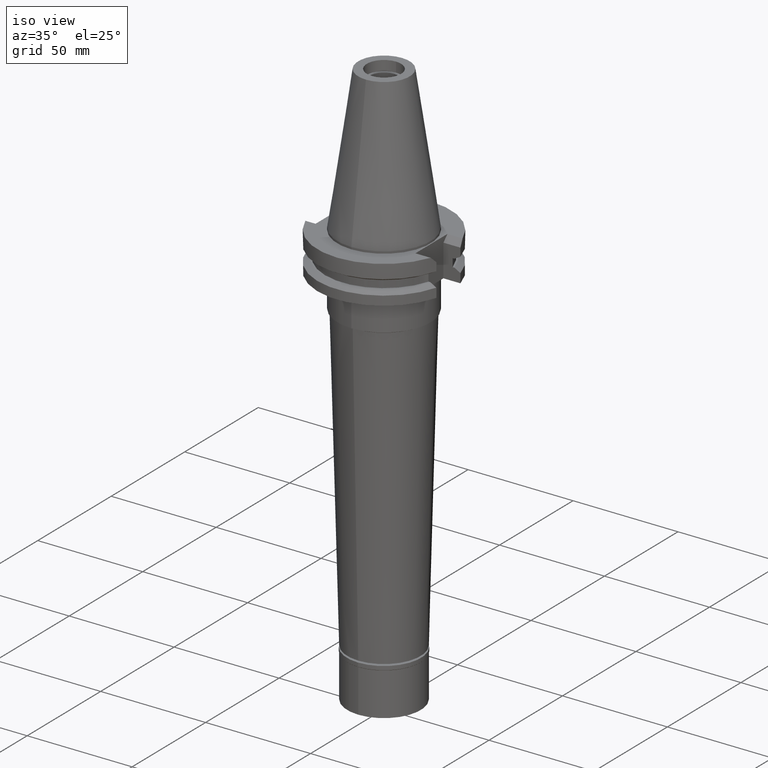
[diagram: clean part render]
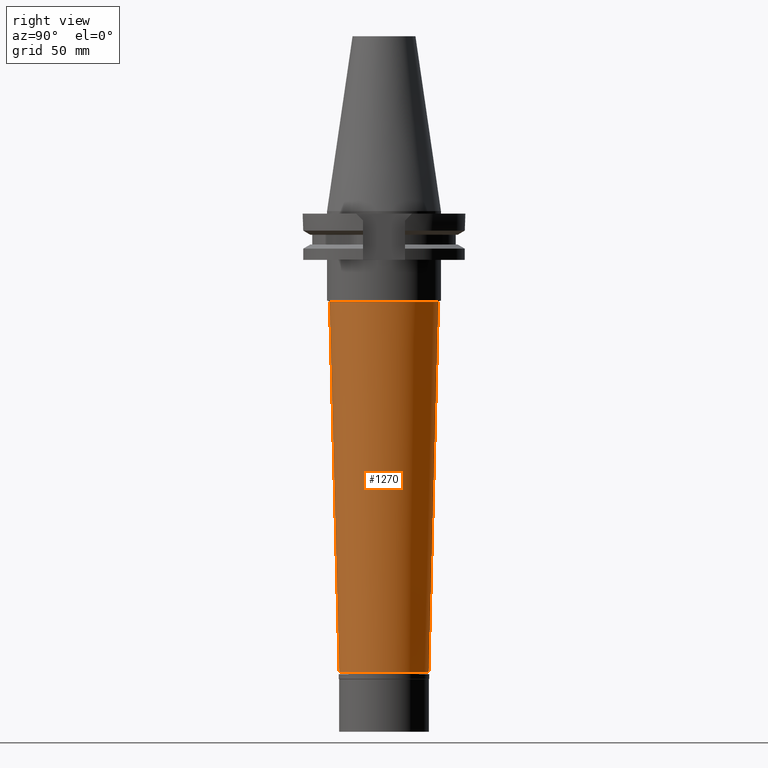
[diagram: tour spotlight — one face highlighted and labeled with its STEP entity id]
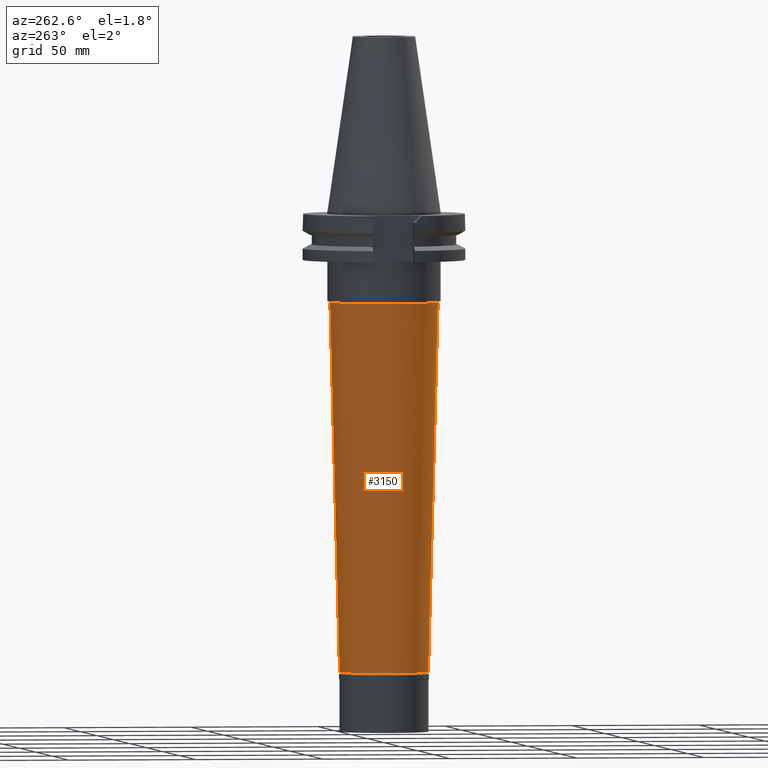
[diagram: tour spotlight — one face highlighted and labeled with its STEP entity id]
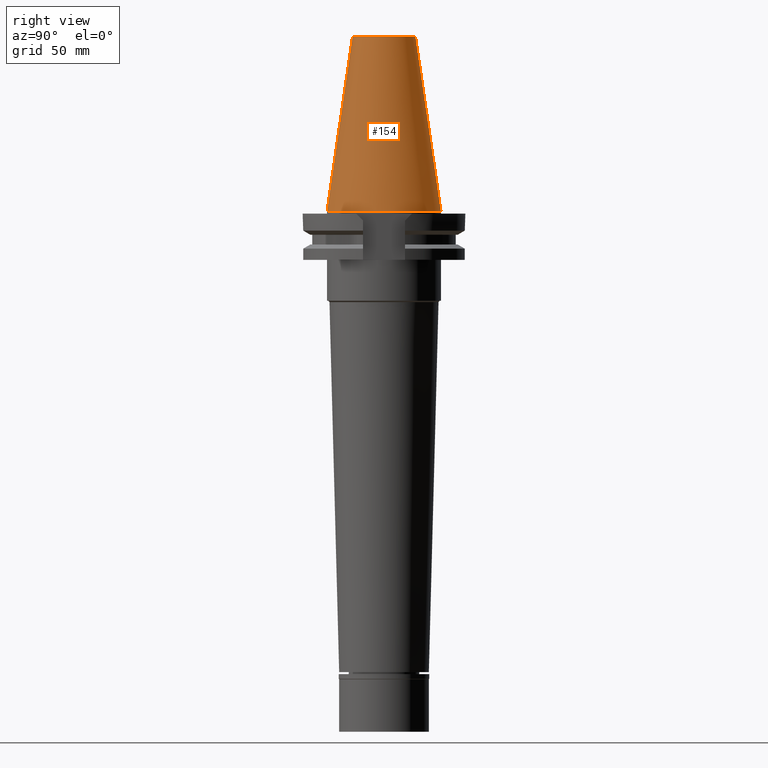
[diagram: tour spotlight — one face highlighted and labeled with its STEP entity id]
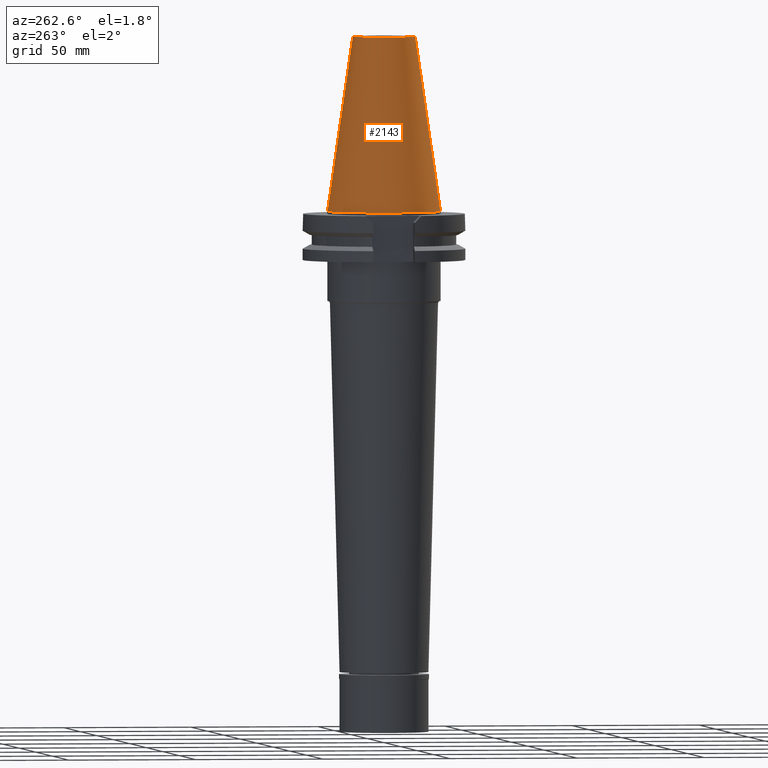
[diagram: tour spotlight — one face highlighted and labeled with its STEP entity id]
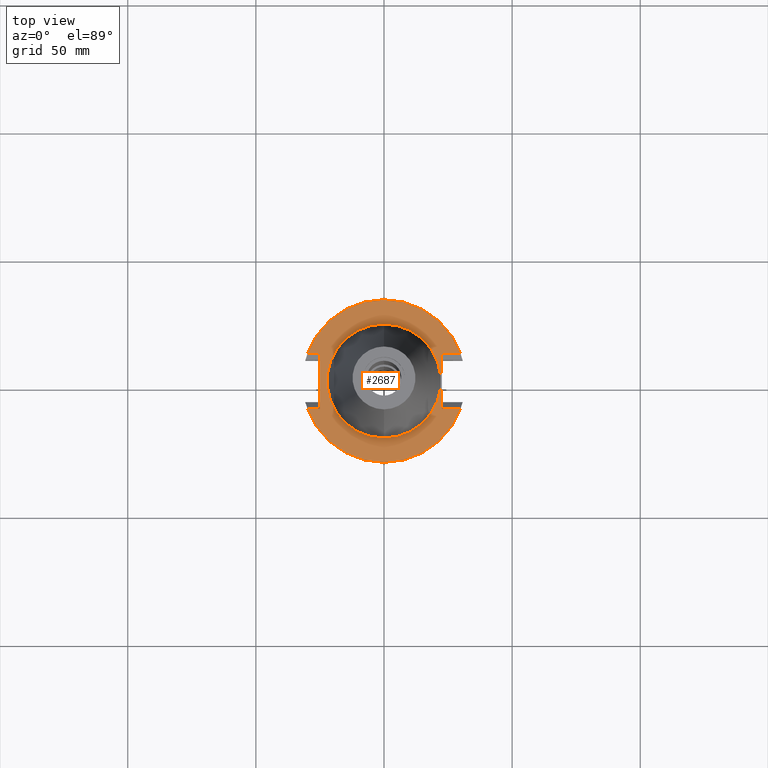
[diagram: tour spotlight — one face highlighted and labeled with its STEP entity id]
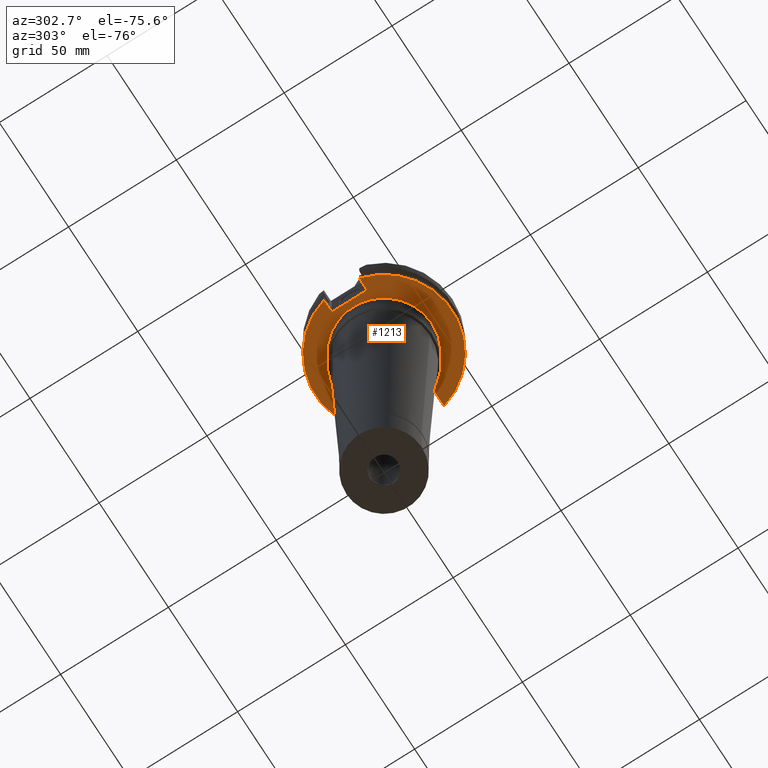
[diagram: tour spotlight — one face highlighted and labeled with its STEP entity id]
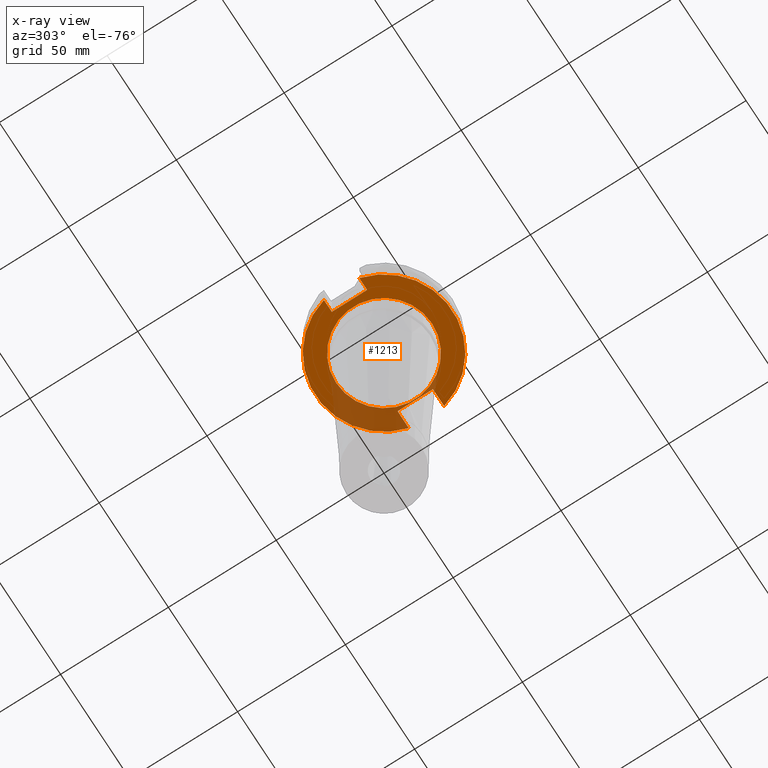
[diagram: x-ray of the same camera — body ghosted, this tour face saturated]
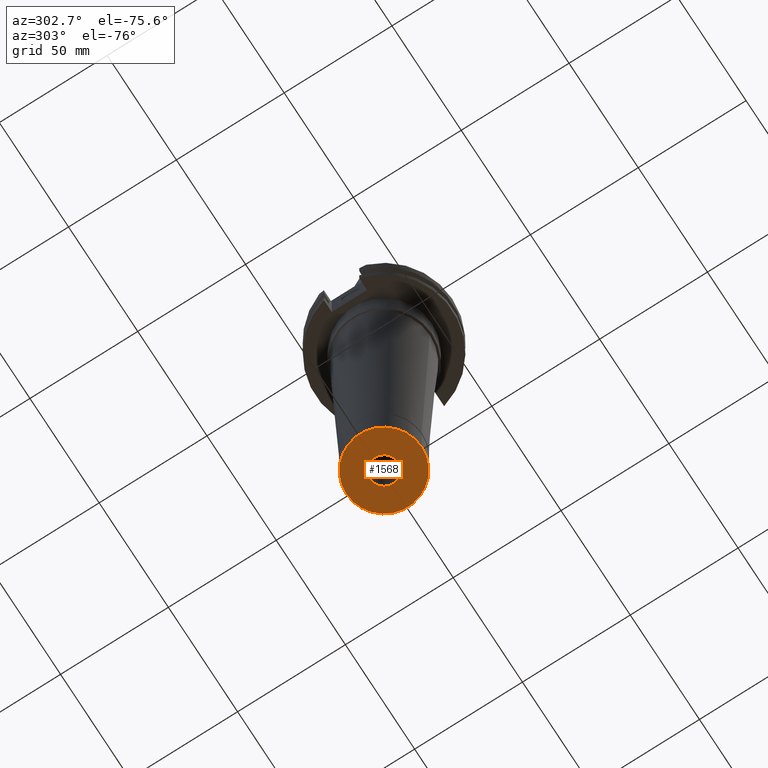
[diagram: tour spotlight — one face highlighted and labeled with its STEP entity id]
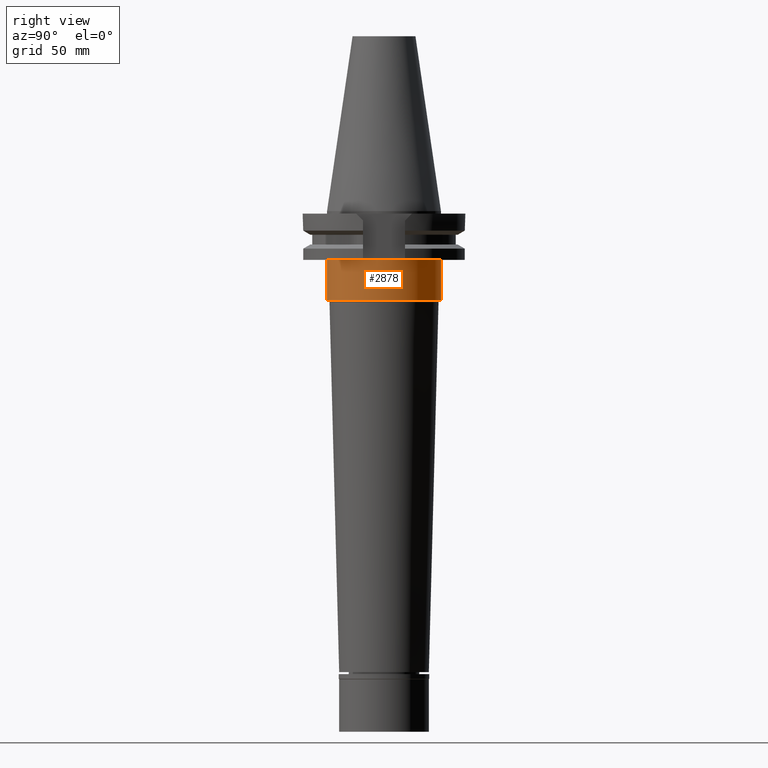
[diagram: tour spotlight — one face highlighted and labeled with its STEP entity id]
A machine part: a face-by-face anatomy tour. The part has 93 B-rep faces; the first image is the clean iso view, then the 8 largest visible faces are spotlighted one at a time (largest first), each with its STEP entity span.

Face 1 — right view, entity #1270. In plain terms, the highlighted conical surface has half-angle 1.5 deg.
Definition (entity closure, byte-faithful):
#185 = CARTESIAN_POINT ( 'NONE',  ( 0.0000000000000000000, 21.28124707458999865, -35.50000000000000000 ) ) ;
#299 = ORIENTED_EDGE ( 'NONE', *, *, #1083, .T. ) ;
#312 = CIRCLE ( 'NONE', #2158, 17.50000000000000000 ) ;
#415 = VERTEX_POINT ( 'NONE', #2473 ) ;
#519 = CARTESIAN_POINT ( 'NONE',  ( 0.0000000000000000000, 0.0000000000000000000, -179.9000000000000057 ) ) ;
#550 = LINE ( 'NONE', #581, #2730 ) ;
#564 = DIRECTION ( 'NONE',  ( 0.0000000000000000000, 0.0000000000000000000, 1.000000000000000000 ) ) ;
#581 = CARTESIAN_POINT ( 'NONE',  ( 0.0000000000000000000, 21.28124707458999865, -35.50000000000000000 ) ) ;
#591 = EDGE_CURVE ( 'NONE', #415, #1584, #2321, .T. ) ;
#648 = DIRECTION ( 'NONE',  ( 0.0000000000000000000, 1.000000000000000000, 0.0000000000000000000 ) ) ;
#808 = DIRECTION ( 'NONE',  ( 0.0000000000000000000, 0.02617694830786890942, -0.9996573249755573709 ) ) ;
#820 = CARTESIAN_POINT ( 'NONE',  ( 0.0000000000000000000, -21.28124707458999865, -35.50000000000000000 ) ) ;
#842 = ORIENTED_EDGE ( 'NONE', *, *, #956, .F. ) ;
#948 = VERTEX_POINT ( 'NONE', #185 ) ;
#956 = EDGE_CURVE ( 'NONE', #415, #948, #2498, .T. ) ;
#958 = DIRECTION ( 'NONE',  ( 0.0000000000000000000, -1.000000000000000000, 0.0000000000000000000 ) ) ;
#1065 = AXIS2_PLACEMENT_3D ( 'NONE', #1915, #2408, #648 ) ;
#1083 = EDGE_CURVE ( 'NONE', #1584, #2977, #312, .T. ) ;
#1212 = DIRECTION ( 'NONE',  ( 0.0000000000000000000, 0.0000000000000000000, 1.000000000000000000 ) ) ;
#1270 = ADVANCED_FACE ( 'NONE', ( #1369 ), #3109, .T. ) ;
#1369 = FACE_OUTER_BOUND ( 'NONE', #2268, .T. ) ;
#1584 = VERTEX_POINT ( 'NONE', #2317 ) ;
#1656 = ORIENTED_EDGE ( 'NONE', *, *, #3006, .F. ) ;
#1915 = CARTESIAN_POINT ( 'NONE',  ( 0.0000000000000000000, 0.0000000000000000000, -107.7000000000000028 ) ) ;
#1935 = AXIS2_PLACEMENT_3D ( 'NONE', #3090, #1212, #958 ) ;
#2125 = CARTESIAN_POINT ( 'NONE',  ( 0.0000000000000000000, 17.50000000000000000, -179.9000000000000057 ) ) ;
#2158 = AXIS2_PLACEMENT_3D ( 'NONE', #519, #564, #2843 ) ;
#2268 = EDGE_LOOP ( 'NONE', ( #842, #2885, #299, #1656 ) ) ;
#2317 = CARTESIAN_POINT ( 'NONE',  ( 0.0000000000000000000, -17.50000000000000000, -179.9000000000000057 ) ) ;
#2321 = LINE ( 'NONE', #820, #3285 ) ;
#2408 = DIRECTION ( 'NONE',  ( 0.0000000000000000000, 0.0000000000000000000, 1.000000000000000000 ) ) ;
#2473 = CARTESIAN_POINT ( 'NONE',  ( 0.0000000000000000000, -21.28124707458999865, -35.50000000000000000 ) ) ;
#2498 = CIRCLE ( 'NONE', #1935, 21.28124707459999954 ) ;
#2730 = VECTOR ( 'NONE', #2870, 1000.000000000000227 ) ;
#2843 = DIRECTION ( 'NONE',  ( 0.0000000000000000000, -1.000000000000000000, 0.0000000000000000000 ) ) ;
#2870 = DIRECTION ( 'NONE',  ( 0.0000000000000000000, -0.02617694830786890942, -0.9996573249755573709 ) ) ;
#2885 = ORIENTED_EDGE ( 'NONE', *, *, #591, .T. ) ;
#2977 = VERTEX_POINT ( 'NONE', #2125 ) ;
#3006 = EDGE_CURVE ( 'NONE', #948, #2977, #550, .T. ) ;
#3090 = CARTESIAN_POINT ( 'NONE',  ( 0.0000000000000000000, 0.0000000000000000000, -35.50000000000000000 ) ) ;
#3109 = CONICAL_SURFACE ( 'NONE', #1065, 19.39062353730000154, 0.02617993877991150325 ) ;
#3285 = VECTOR ( 'NONE', #808, 1000.000000000000227 ) ;

Face 2 — auxiliary view, entity #3150. In plain terms, the highlighted conical surface has half-angle 1.5 deg.
Definition (entity closure, byte-faithful):
#185 = CARTESIAN_POINT ( 'NONE',  ( 0.0000000000000000000, 21.28124707458999865, -35.50000000000000000 ) ) ;
#381 = DIRECTION ( 'NONE',  ( 0.0000000000000000000, 1.000000000000000000, 0.0000000000000000000 ) ) ;
#415 = VERTEX_POINT ( 'NONE', #2473 ) ;
#469 = CARTESIAN_POINT ( 'NONE',  ( 0.0000000000000000000, 0.0000000000000000000, -179.9000000000000057 ) ) ;
#550 = LINE ( 'NONE', #581, #2730 ) ;
#581 = CARTESIAN_POINT ( 'NONE',  ( 0.0000000000000000000, 21.28124707458999865, -35.50000000000000000 ) ) ;
#586 = AXIS2_PLACEMENT_3D ( 'NONE', #954, #1742, #1945 ) ;
#591 = EDGE_CURVE ( 'NONE', #415, #1584, #2321, .T. ) ;
#593 = CONICAL_SURFACE ( 'NONE', #3065, 19.39062353730000154, 0.02617993877991150325 ) ;
#621 = DIRECTION ( 'NONE',  ( 0.0000000000000000000, 0.0000000000000000000, 1.000000000000000000 ) ) ;
#698 = ORIENTED_EDGE ( 'NONE', *, *, #591, .F. ) ;
#808 = DIRECTION ( 'NONE',  ( 0.0000000000000000000, 0.02617694830786890942, -0.9996573249755573709 ) ) ;
#820 = CARTESIAN_POINT ( 'NONE',  ( 0.0000000000000000000, -21.28124707458999865, -35.50000000000000000 ) ) ;
#884 = ORIENTED_EDGE ( 'NONE', *, *, #1445, .T. ) ;
#887 = ORIENTED_EDGE ( 'NONE', *, *, #3006, .T. ) ;
#912 = CARTESIAN_POINT ( 'NONE',  ( 0.0000000000000000000, 0.0000000000000000000, -107.7000000000000028 ) ) ;
#948 = VERTEX_POINT ( 'NONE', #185 ) ;
#954 = CARTESIAN_POINT ( 'NONE',  ( 0.0000000000000000000, 0.0000000000000000000, -35.50000000000000000 ) ) ;
#1162 = ORIENTED_EDGE ( 'NONE', *, *, #1412, .T. ) ;
#1412 = EDGE_CURVE ( 'NONE', #415, #948, #2047, .T. ) ;
#1416 = EDGE_LOOP ( 'NONE', ( #884, #698, #1162, #887 ) ) ;
#1445 = EDGE_CURVE ( 'NONE', #2977, #1584, #2887, .T. ) ;
#1584 = VERTEX_POINT ( 'NONE', #2317 ) ;
#1742 = DIRECTION ( 'NONE',  ( 0.0000000000000000000, 0.0000000000000000000, -1.000000000000000000 ) ) ;
#1945 = DIRECTION ( 'NONE',  ( 0.0000000000000000000, -1.000000000000000000, 0.0000000000000000000 ) ) ;
#2047 = CIRCLE ( 'NONE', #586, 21.28124707458999865 ) ;
#2125 = CARTESIAN_POINT ( 'NONE',  ( 0.0000000000000000000, 17.50000000000000000, -179.9000000000000057 ) ) ;
#2317 = CARTESIAN_POINT ( 'NONE',  ( 0.0000000000000000000, -17.50000000000000000, -179.9000000000000057 ) ) ;
#2321 = LINE ( 'NONE', #820, #3285 ) ;
#2473 = CARTESIAN_POINT ( 'NONE',  ( 0.0000000000000000000, -21.28124707458999865, -35.50000000000000000 ) ) ;
#2727 = FACE_OUTER_BOUND ( 'NONE', #1416, .T. ) ;
#2730 = VECTOR ( 'NONE', #2870, 1000.000000000000227 ) ;
#2815 = DIRECTION ( 'NONE',  ( 0.0000000000000000000, 1.000000000000000000, 0.0000000000000000000 ) ) ;
#2828 = AXIS2_PLACEMENT_3D ( 'NONE', #469, #3088, #2815 ) ;
#2870 = DIRECTION ( 'NONE',  ( 0.0000000000000000000, -0.02617694830786890942, -0.9996573249755573709 ) ) ;
#2887 = CIRCLE ( 'NONE', #2828, 17.50000000000000000 ) ;
#2977 = VERTEX_POINT ( 'NONE', #2125 ) ;
#3006 = EDGE_CURVE ( 'NONE', #948, #2977, #550, .T. ) ;
#3065 = AXIS2_PLACEMENT_3D ( 'NONE', #912, #621, #381 ) ;
#3088 = DIRECTION ( 'NONE',  ( 0.0000000000000000000, 0.0000000000000000000, 1.000000000000000000 ) ) ;
#3150 = ADVANCED_FACE ( 'NONE', ( #2727 ), #593, .T. ) ;
#3285 = VECTOR ( 'NONE', #808, 1000.000000000000227 ) ;

Face 3 — right view, entity #154. In plain terms, the highlighted conical surface has half-angle 8.297 deg.
Definition (entity closure, byte-faithful):
#30 = DIRECTION ( 'NONE',  ( 0.0000000000000000000, 0.0000000000000000000, -1.000000000000000000 ) ) ;
#35 = DIRECTION ( 'NONE',  ( 0.0000000000000000000, -1.000000000000000000, 0.0000000000000000000 ) ) ;
#67 = CARTESIAN_POINT ( 'NONE',  ( 0.0000000000000000000, 1.642557519355999895E-14, 68.25000000000000000 ) ) ;
#154 = ADVANCED_FACE ( 'NONE', ( #2938 ), #1240, .T. ) ;
#179 = ORIENTED_EDGE ( 'NONE', *, *, #188, .T. ) ;
#188 = EDGE_CURVE ( 'NONE', #3032, #2166, #1678, .T. ) ;
#227 = ORIENTED_EDGE ( 'NONE', *, *, #3253, .F. ) ;
#317 = DIRECTION ( 'NONE',  ( 0.0000000000000000000, 1.000000000000000000, 0.0000000000000000000 ) ) ;
#346 = DIRECTION ( 'NONE',  ( 0.0000000000000000000, 0.1443069799456937474, -0.9895329683941577192 ) ) ;
#437 = CARTESIAN_POINT ( 'NONE',  ( 0.0000000000000000000, -22.22500000000000142, -2.415845301584000349E-13 ) ) ;
#625 = DIRECTION ( 'NONE',  ( 0.0000000000000000000, 0.0000000000000000000, -1.000000000000000000 ) ) ;
#704 = AXIS2_PLACEMENT_3D ( 'NONE', #67, #625, #317 ) ;
#776 = EDGE_CURVE ( 'NONE', #2166, #1391, #1901, .T. ) ;
#806 = AXIS2_PLACEMENT_3D ( 'NONE', #2974, #1092, #35 ) ;
#935 = ORIENTED_EDGE ( 'NONE', *, *, #776, .T. ) ;
#1047 = DIRECTION ( 'NONE',  ( 0.0000000000000000000, 1.000000000000000000, 0.0000000000000000000 ) ) ;
#1092 = DIRECTION ( 'NONE',  ( 0.0000000000000000000, 0.0000000000000000000, -1.000000000000000000 ) ) ;
#1240 = CONICAL_SURFACE ( 'NONE', #806, 17.24843444035000317, 0.1448125860318199565 ) ;
#1309 = CARTESIAN_POINT ( 'NONE',  ( 0.0000000000000000000, 1.642557519355999895E-14, -3.126388037344000570E-13 ) ) ;
#1391 = VERTEX_POINT ( 'NONE', #437 ) ;
#1659 = CARTESIAN_POINT ( 'NONE',  ( 0.0000000000000000000, 22.22500000000000142, -2.415845301584000349E-13 ) ) ;
#1678 = CIRCLE ( 'NONE', #704, 12.27186888070000137 ) ;
#1693 = CARTESIAN_POINT ( 'NONE',  ( 0.0000000000000000000, 12.27186888070000137, 68.25000000000000000 ) ) ;
#1760 = EDGE_LOOP ( 'NONE', ( #179, #935, #1994, #227 ) ) ;
#1781 = VECTOR ( 'NONE', #346, 1000.000000000000114 ) ;
#1901 = LINE ( 'NONE', #2949, #2998 ) ;
#1994 = ORIENTED_EDGE ( 'NONE', *, *, #3075, .F. ) ;
#2106 = AXIS2_PLACEMENT_3D ( 'NONE', #1309, #30, #1047 ) ;
#2107 = CARTESIAN_POINT ( 'NONE',  ( 0.0000000000000000000, 12.27186888070000137, 68.25000000000000000 ) ) ;
#2166 = VERTEX_POINT ( 'NONE', #3217 ) ;
#2208 = VERTEX_POINT ( 'NONE', #1659 ) ;
#2485 = LINE ( 'NONE', #1693, #1781 ) ;
#2672 = CIRCLE ( 'NONE', #2106, 22.22500000000000142 ) ;
#2938 = FACE_OUTER_BOUND ( 'NONE', #1760, .T. ) ;
#2949 = CARTESIAN_POINT ( 'NONE',  ( 0.0000000000000000000, -12.27186888070000137, 68.25000000000000000 ) ) ;
#2969 = DIRECTION ( 'NONE',  ( 0.0000000000000000000, -0.1443069799456937474, -0.9895329683941577192 ) ) ;
#2974 = CARTESIAN_POINT ( 'NONE',  ( 0.0000000000000000000, 1.642557519355999895E-14, 34.12500000000000000 ) ) ;
#2998 = VECTOR ( 'NONE', #2969, 1000.000000000000114 ) ;
#3032 = VERTEX_POINT ( 'NONE', #2107 ) ;
#3075 = EDGE_CURVE ( 'NONE', #2208, #1391, #2672, .T. ) ;
#3217 = CARTESIAN_POINT ( 'NONE',  ( 0.0000000000000000000, -12.27186888070000137, 68.25000000000000000 ) ) ;
#3253 = EDGE_CURVE ( 'NONE', #3032, #2208, #2485, .T. ) ;

Face 4 — auxiliary view, entity #2143. In plain terms, the highlighted conical surface has half-angle 8.297 deg.
Definition (entity closure, byte-faithful):
#52 = DIRECTION ( 'NONE',  ( 0.0000000000000000000, -1.000000000000000000, 0.0000000000000000000 ) ) ;
#346 = DIRECTION ( 'NONE',  ( 0.0000000000000000000, 0.1443069799456937474, -0.9895329683941577192 ) ) ;
#406 = DIRECTION ( 'NONE',  ( 0.0000000000000000000, 0.0000000000000000000, -1.000000000000000000 ) ) ;
#437 = CARTESIAN_POINT ( 'NONE',  ( 0.0000000000000000000, -22.22500000000000142, -2.415845301584000349E-13 ) ) ;
#475 = AXIS2_PLACEMENT_3D ( 'NONE', #1948, #406, #1429 ) ;
#507 = EDGE_CURVE ( 'NONE', #1391, #2208, #1451, .T. ) ;
#610 = DIRECTION ( 'NONE',  ( 0.0000000000000000000, 0.0000000000000000000, -1.000000000000000000 ) ) ;
#736 = ORIENTED_EDGE ( 'NONE', *, *, #507, .F. ) ;
#739 = ORIENTED_EDGE ( 'NONE', *, *, #3253, .T. ) ;
#776 = EDGE_CURVE ( 'NONE', #2166, #1391, #1901, .T. ) ;
#899 = CONICAL_SURFACE ( 'NONE', #1060, 17.24843444035000317, 0.1448125860318199565 ) ;
#981 = EDGE_CURVE ( 'NONE', #2166, #3032, #1881, .T. ) ;
#1060 = AXIS2_PLACEMENT_3D ( 'NONE', #3196, #610, #52 ) ;
#1252 = DIRECTION ( 'NONE',  ( 0.0000000000000000000, 0.0000000000000000000, -1.000000000000000000 ) ) ;
#1391 = VERTEX_POINT ( 'NONE', #437 ) ;
#1429 = DIRECTION ( 'NONE',  ( 0.0000000000000000000, -1.000000000000000000, 0.0000000000000000000 ) ) ;
#1451 = CIRCLE ( 'NONE', #2784, 22.22500000000000142 ) ;
#1535 = ORIENTED_EDGE ( 'NONE', *, *, #981, .T. ) ;
#1598 = ORIENTED_EDGE ( 'NONE', *, *, #776, .F. ) ;
#1659 = CARTESIAN_POINT ( 'NONE',  ( 0.0000000000000000000, 22.22500000000000142, -2.415845301584000349E-13 ) ) ;
#1693 = CARTESIAN_POINT ( 'NONE',  ( 0.0000000000000000000, 12.27186888070000137, 68.25000000000000000 ) ) ;
#1781 = VECTOR ( 'NONE', #346, 1000.000000000000114 ) ;
#1881 = CIRCLE ( 'NONE', #475, 12.27186888070000137 ) ;
#1901 = LINE ( 'NONE', #2949, #2998 ) ;
#1948 = CARTESIAN_POINT ( 'NONE',  ( 0.0000000000000000000, 1.642557519355999895E-14, 68.25000000000000000 ) ) ;
#2036 = DIRECTION ( 'NONE',  ( 0.0000000000000000000, -1.000000000000000000, 0.0000000000000000000 ) ) ;
#2107 = CARTESIAN_POINT ( 'NONE',  ( 0.0000000000000000000, 12.27186888070000137, 68.25000000000000000 ) ) ;
#2138 = FACE_OUTER_BOUND ( 'NONE', #2698, .T. ) ;
#2143 = ADVANCED_FACE ( 'NONE', ( #2138 ), #899, .T. ) ;
#2166 = VERTEX_POINT ( 'NONE', #3217 ) ;
#2187 = CARTESIAN_POINT ( 'NONE',  ( 0.0000000000000000000, 1.642557519355999895E-14, -3.126388037344000570E-13 ) ) ;
#2208 = VERTEX_POINT ( 'NONE', #1659 ) ;
#2485 = LINE ( 'NONE', #1693, #1781 ) ;
#2698 = EDGE_LOOP ( 'NONE', ( #736, #1598, #1535, #739 ) ) ;
#2784 = AXIS2_PLACEMENT_3D ( 'NONE', #2187, #1252, #2036 ) ;
#2949 = CARTESIAN_POINT ( 'NONE',  ( 0.0000000000000000000, -12.27186888070000137, 68.25000000000000000 ) ) ;
#2969 = DIRECTION ( 'NONE',  ( 0.0000000000000000000, -0.1443069799456937474, -0.9895329683941577192 ) ) ;
#2998 = VECTOR ( 'NONE', #2969, 1000.000000000000114 ) ;
#3032 = VERTEX_POINT ( 'NONE', #2107 ) ;
#3196 = CARTESIAN_POINT ( 'NONE',  ( 0.0000000000000000000, 1.642557519355999895E-14, 34.12500000000000000 ) ) ;
#3217 = CARTESIAN_POINT ( 'NONE',  ( 0.0000000000000000000, -12.27186888070000137, 68.25000000000000000 ) ) ;
#3253 = EDGE_CURVE ( 'NONE', #3032, #2208, #2485, .T. ) ;

Face 5 — top view, entity #2687. In plain terms, the highlighted planar face has unit normal (0, 0, -1).
Definition (entity closure, byte-faithful):
#26 = LINE ( 'NONE', #1009, #522 ) ;
#45 = ORIENTED_EDGE ( 'NONE', *, *, #1167, .T. ) ;
#54 = CARTESIAN_POINT ( 'NONE',  ( -24.98000000000000043, -10.89000000000000057, -1.000000000000000000 ) ) ;
#84 = CARTESIAN_POINT ( 'NONE',  ( -24.98000000000000043, 10.89000000000000057, -1.000000000000000000 ) ) ;
#142 = CARTESIAN_POINT ( 'NONE',  ( 0.0000000000000000000, 22.22500000000000142, -1.000000000000000000 ) ) ;
#143 = FACE_BOUND ( 'NONE', #1984, .T. ) ;
#153 = AXIS2_PLACEMENT_3D ( 'NONE', #853, #3219, #578 ) ;
#207 = ORIENTED_EDGE ( 'NONE', *, *, #2701, .F. ) ;
#213 = EDGE_LOOP ( 'NONE', ( #248, #1176, #207, #45, #1107, #2088, #3133, #536 ) ) ;
#236 = LINE ( 'NONE', #772, #2441 ) ;
#248 = ORIENTED_EDGE ( 'NONE', *, *, #2412, .T. ) ;
#256 = EDGE_CURVE ( 'NONE', #583, #3079, #367, .T. ) ;
#271 = LINE ( 'NONE', #1619, #2269 ) ;
#359 = CARTESIAN_POINT ( 'NONE',  ( -24.98000000000000043, -10.89000000000000057, -1.000000000000000000 ) ) ;
#367 = LINE ( 'NONE', #2957, #2849 ) ;
#410 = LINE ( 'NONE', #3041, #647 ) ;
#522 = VECTOR ( 'NONE', #2050, 1000.000000000000000 ) ;
#536 = ORIENTED_EDGE ( 'NONE', *, *, #2262, .F. ) ;
#578 = DIRECTION ( 'NONE',  ( 0.0000000000000000000, -1.000000000000000000, 0.0000000000000000000 ) ) ;
#583 = VERTEX_POINT ( 'NONE', #1560 ) ;
#617 = DIRECTION ( 'NONE',  ( 0.0000000000000000000, 1.000000000000000000, 0.0000000000000000000 ) ) ;
#636 = PLANE ( 'NONE',  #641 ) ;
#641 = AXIS2_PLACEMENT_3D ( 'NONE', #2431, #1712, #2203 ) ;
#647 = VECTOR ( 'NONE', #2222, 1000.000000000000000 ) ;
#685 = CIRCLE ( 'NONE', #2766, 31.75000000000000000 ) ;
#723 = DIRECTION ( 'NONE',  ( 0.0000000000000000000, -1.000000000000000000, 0.0000000000000000000 ) ) ;
#730 = EDGE_CURVE ( 'NONE', #3164, #1929, #1577, .T. ) ;
#772 = CARTESIAN_POINT ( 'NONE',  ( 22.57000000000000028, 10.89000000000000057, -1.000000000000000000 ) ) ;
#851 = DIRECTION ( 'NONE',  ( 0.0000000000000000000, 1.000000000000000000, 0.0000000000000000000 ) ) ;
#853 = CARTESIAN_POINT ( 'NONE',  ( 0.0000000000000000000, 2.222580859602999833E-14, -1.000000000000000000 ) ) ;
#871 = CARTESIAN_POINT ( 'NONE',  ( 0.0000000000000000000, 2.222580859602999833E-14, -1.000000000000000000 ) ) ;
#875 = EDGE_CURVE ( 'NONE', #1216, #2675, #1663, .T. ) ;
#903 = CIRCLE ( 'NONE', #153, 22.22500000000000142 ) ;
#1009 = CARTESIAN_POINT ( 'NONE',  ( -24.98000000000000043, 10.89000000000000057, -1.000000000000000000 ) ) ;
#1098 = CARTESIAN_POINT ( 'NONE',  ( 0.0000000000000000000, 2.222580859602999833E-14, -1.000000000000000000 ) ) ;
#1107 = ORIENTED_EDGE ( 'NONE', *, *, #875, .T. ) ;
#1167 = EDGE_CURVE ( 'NONE', #2458, #1216, #26, .T. ) ;
#1171 = CARTESIAN_POINT ( 'NONE',  ( 22.57000000000000028, 10.89000000000000057, -1.000000000000000000 ) ) ;
#1176 = ORIENTED_EDGE ( 'NONE', *, *, #2131, .F. ) ;
#1216 = VERTEX_POINT ( 'NONE', #54 ) ;
#1226 = EDGE_CURVE ( 'NONE', #1929, #3164, #903, .T. ) ;
#1241 = DIRECTION ( 'NONE',  ( 0.0000000000000000000, 0.0000000000000000000, -1.000000000000000000 ) ) ;
#1326 = ORIENTED_EDGE ( 'NONE', *, *, #730, .F. ) ;
#1356 = AXIS2_PLACEMENT_3D ( 'NONE', #2198, #2411, #617 ) ;
#1431 = CARTESIAN_POINT ( 'NONE',  ( 29.82399034335000110, -10.89000000000000057, -1.000000000001000089 ) ) ;
#1560 = CARTESIAN_POINT ( 'NONE',  ( 22.57000000000000028, -10.89000000000000057, -1.000000000000000000 ) ) ;
#1577 = CIRCLE ( 'NONE', #1356, 22.22500000000000142 ) ;
#1588 = DIRECTION ( 'NONE',  ( 1.000000000000000000, 5.779166972325999752E-14, 0.0000000000000000000 ) ) ;
#1619 = CARTESIAN_POINT ( 'NONE',  ( 22.57000000000000028, 10.89000000000000057, -1.000000000000000000 ) ) ;
#1663 = LINE ( 'NONE', #359, #3107 ) ;
#1712 = DIRECTION ( 'NONE',  ( 0.0000000000000000000, 0.0000000000000000000, -1.000000000000000000 ) ) ;
#1803 = CARTESIAN_POINT ( 'NONE',  ( -29.82399034335000110, 10.89000000000000057, -1.000000000000000000 ) ) ;
#1877 = DIRECTION ( 'NONE',  ( 0.0000000000000000000, 0.0000000000000000000, -1.000000000000000000 ) ) ;
#1911 = VERTEX_POINT ( 'NONE', #3063 ) ;
#1929 = VERTEX_POINT ( 'NONE', #3043 ) ;
#1984 = EDGE_LOOP ( 'NONE', ( #1326, #2664 ) ) ;
#2050 = DIRECTION ( 'NONE',  ( 0.0000000000000000000, -1.000000000000000000, 0.0000000000000000000 ) ) ;
#2088 = ORIENTED_EDGE ( 'NONE', *, *, #2243, .F. ) ;
#2131 = EDGE_CURVE ( 'NONE', #2404, #1911, #2546, .T. ) ;
#2198 = CARTESIAN_POINT ( 'NONE',  ( 0.0000000000000000000, 2.222580859602999833E-14, -1.000000000000000000 ) ) ;
#2203 = DIRECTION ( 'NONE',  ( 0.0000000000000000000, -1.000000000000000000, 0.0000000000000000000 ) ) ;
#2222 = DIRECTION ( 'NONE',  ( -1.000000000000000000, -8.617768155387999131E-14, 0.0000000000000000000 ) ) ;
#2243 = EDGE_CURVE ( 'NONE', #3079, #2675, #685, .T. ) ;
#2262 = EDGE_CURVE ( 'NONE', #2747, #583, #236, .T. ) ;
#2269 = VECTOR ( 'NONE', #2677, 1000.000000000000000 ) ;
#2404 = VERTEX_POINT ( 'NONE', #1803 ) ;
#2411 = DIRECTION ( 'NONE',  ( 0.0000000000000000000, 0.0000000000000000000, 1.000000000000000000 ) ) ;
#2412 = EDGE_CURVE ( 'NONE', #2747, #1911, #271, .T. ) ;
#2431 = CARTESIAN_POINT ( 'NONE',  ( 0.0000000000000000000, 1.212400331155999925E-14, -1.000000000000000000 ) ) ;
#2441 = VECTOR ( 'NONE', #723, 1000.000000000000000 ) ;
#2451 = CARTESIAN_POINT ( 'NONE',  ( -29.82399034335000110, -10.89000000000000057, -1.000000000001000089 ) ) ;
#2458 = VERTEX_POINT ( 'NONE', #84 ) ;
#2494 = AXIS2_PLACEMENT_3D ( 'NONE', #871, #1877, #851 ) ;
#2546 = CIRCLE ( 'NONE', #2494, 31.75000000000000000 ) ;
#2664 = ORIENTED_EDGE ( 'NONE', *, *, #1226, .F. ) ;
#2675 = VERTEX_POINT ( 'NONE', #2451 ) ;
#2677 = DIRECTION ( 'NONE',  ( 1.000000000000000000, -5.656726994099000295E-14, 0.0000000000000000000 ) ) ;
#2687 = ADVANCED_FACE ( 'NONE', ( #3009, #143 ), #636, .F. ) ;
#2701 = EDGE_CURVE ( 'NONE', #2458, #2404, #410, .T. ) ;
#2747 = VERTEX_POINT ( 'NONE', #1171 ) ;
#2766 = AXIS2_PLACEMENT_3D ( 'NONE', #1098, #1241, #3067 ) ;
#2801 = DIRECTION ( 'NONE',  ( -1.000000000000000000, 8.581096801535000112E-14, 0.0000000000000000000 ) ) ;
#2849 = VECTOR ( 'NONE', #1588, 1000.000000000000000 ) ;
#2957 = CARTESIAN_POINT ( 'NONE',  ( 22.57000000000000028, -10.89000000000000057, -1.000000000000000000 ) ) ;
#3009 = FACE_OUTER_BOUND ( 'NONE', #213, .T. ) ;
#3041 = CARTESIAN_POINT ( 'NONE',  ( -24.98000000000000043, 10.89000000000000057, -1.000000000000000000 ) ) ;
#3043 = CARTESIAN_POINT ( 'NONE',  ( 0.0000000000000000000, -22.22500000000000142, -1.000000000000000000 ) ) ;
#3063 = CARTESIAN_POINT ( 'NONE',  ( 29.82399034335000110, 10.89000000000000057, -1.000000000001000089 ) ) ;
#3067 = DIRECTION ( 'NONE',  ( 0.0000000000000000000, -1.000000000000000000, 0.0000000000000000000 ) ) ;
#3079 = VERTEX_POINT ( 'NONE', #1431 ) ;
#3107 = VECTOR ( 'NONE', #2801, 1000.000000000000000 ) ;
#3133 = ORIENTED_EDGE ( 'NONE', *, *, #256, .F. ) ;
#3164 = VERTEX_POINT ( 'NONE', #142 ) ;
#3219 = DIRECTION ( 'NONE',  ( 0.0000000000000000000, 0.0000000000000000000, 1.000000000000000000 ) ) ;

Face 6 — auxiliary view, entity #1213. An x-ray twin of the same camera follows (body ghosted, this face saturated) — the face is partly hidden behind the body. In plain terms, the highlighted planar face has unit normal (0, 0, -1).
Definition (entity closure, byte-faithful):
#71 = DIRECTION ( 'NONE',  ( 0.0000000000000000000, 0.0000000000000000000, -1.000000000000000000 ) ) ;
#110 = FACE_BOUND ( 'NONE', #2532, .T. ) ;
#139 = CARTESIAN_POINT ( 'NONE',  ( 22.57000000000000028, 8.189999999999999503, -19.05000000000000071 ) ) ;
#164 = LINE ( 'NONE', #399, #3204 ) ;
#201 = CARTESIAN_POINT ( 'NONE',  ( 0.0000000000000000000, 2.222580859602999833E-14, -19.05000000000000071 ) ) ;
#205 = DIRECTION ( 'NONE',  ( 0.0000000000000000000, -1.000000000000000000, 0.0000000000000000000 ) ) ;
#215 = ORIENTED_EDGE ( 'NONE', *, *, #821, .F. ) ;
#305 = DIRECTION ( 'NONE',  ( 0.0000000000000000000, -1.000000000000000000, 0.0000000000000000000 ) ) ;
#328 = DIRECTION ( 'NONE',  ( 0.0000000000000000000, -1.000000000000000000, 0.0000000000000000000 ) ) ;
#349 = CARTESIAN_POINT ( 'NONE',  ( -30.67550162588999640, 8.189999999999999503, -19.05000000000000071 ) ) ;
#366 = AXIS2_PLACEMENT_3D ( 'NONE', #1078, #1861, #2929 ) ;
#376 = PLANE ( 'NONE',  #366 ) ;
#378 = LINE ( 'NONE', #2179, #2043 ) ;
#387 = CARTESIAN_POINT ( 'NONE',  ( -24.98000000000000043, -8.189999999999999503, -19.05000000000000071 ) ) ;
#399 = CARTESIAN_POINT ( 'NONE',  ( -24.98000000000000043, -8.189999999999999503, -19.05000000000000071 ) ) ;
#422 = VECTOR ( 'NONE', #1688, 1000.000000000000000 ) ;
#444 = VERTEX_POINT ( 'NONE', #1483 ) ;
#504 = EDGE_CURVE ( 'NONE', #3125, #921, #2847, .T. ) ;
#562 = CARTESIAN_POINT ( 'NONE',  ( 0.0000000000000000000, 2.222580859602999833E-14, -19.05000000000000071 ) ) ;
#567 = CARTESIAN_POINT ( 'NONE',  ( 22.57000000000000028, 8.189999999999999503, -19.05000000000000071 ) ) ;
#579 = AXIS2_PLACEMENT_3D ( 'NONE', #1956, #2535, #919 ) ;
#584 = ORIENTED_EDGE ( 'NONE', *, *, #1450, .F. ) ;
#821 = EDGE_CURVE ( 'NONE', #2872, #1968, #378, .T. ) ;
#837 = CIRCLE ( 'NONE', #2378, 22.22500000000000142 ) ;
#847 = CARTESIAN_POINT ( 'NONE',  ( 22.57000000000000028, 8.189999999999999503, -19.05000000000000071 ) ) ;
#919 = DIRECTION ( 'NONE',  ( 0.0000000000000000000, 1.000000000000000000, 0.0000000000000000000 ) ) ;
#921 = VERTEX_POINT ( 'NONE', #2785 ) ;
#989 = ORIENTED_EDGE ( 'NONE', *, *, #1916, .F. ) ;
#991 = CARTESIAN_POINT ( 'NONE',  ( 0.0000000000000000000, 22.22500000000000142, -19.05000000000000071 ) ) ;
#995 = EDGE_CURVE ( 'NONE', #3179, #2762, #2723, .T. ) ;
#997 = CARTESIAN_POINT ( 'NONE',  ( -24.98000000000000043, 8.189999999999999503, -19.05000000000000071 ) ) ;
#1042 = VERTEX_POINT ( 'NONE', #991 ) ;
#1078 = CARTESIAN_POINT ( 'NONE',  ( 0.0000000000000000000, 0.0000000000000000000, -19.05000000000000071 ) ) ;
#1117 = CIRCLE ( 'NONE', #579, 22.22500000000000142 ) ;
#1196 = LINE ( 'NONE', #139, #422 ) ;
#1213 = ADVANCED_FACE ( 'NONE', ( #2440, #110 ), #376, .T. ) ;
#1335 = EDGE_LOOP ( 'NONE', ( #2137, #3195, #3156, #215, #3310, #2471, #584, #2908 ) ) ;
#1450 = EDGE_CURVE ( 'NONE', #1867, #3179, #1196, .T. ) ;
#1483 = CARTESIAN_POINT ( 'NONE',  ( 0.0000000000000000000, -22.22500000000000142, -19.05000000000000071 ) ) ;
#1512 = LINE ( 'NONE', #997, #2334 ) ;
#1673 = VECTOR ( 'NONE', #3171, 1000.000000000000000 ) ;
#1688 = DIRECTION ( 'NONE',  ( 1.000000000000000000, 0.0000000000000000000, 0.0000000000000000000 ) ) ;
#1836 = ORIENTED_EDGE ( 'NONE', *, *, #2236, .F. ) ;
#1852 = CARTESIAN_POINT ( 'NONE',  ( -30.67550162588999640, -8.189999999999999503, -19.05000000000000071 ) ) ;
#1861 = DIRECTION ( 'NONE',  ( 0.0000000000000000000, 0.0000000000000000000, -1.000000000000000000 ) ) ;
#1867 = VERTEX_POINT ( 'NONE', #847 ) ;
#1872 = EDGE_CURVE ( 'NONE', #1968, #2984, #164, .T. ) ;
#1916 = EDGE_CURVE ( 'NONE', #1042, #444, #1117, .T. ) ;
#1956 = CARTESIAN_POINT ( 'NONE',  ( 0.0000000000000000000, 2.222580859602999833E-14, -19.05000000000000071 ) ) ;
#1968 = VERTEX_POINT ( 'NONE', #387 ) ;
#1998 = DIRECTION ( 'NONE',  ( 0.0000000000000000000, 0.0000000000000000000, 1.000000000000000000 ) ) ;
#2021 = DIRECTION ( 'NONE',  ( 1.000000000000000000, 0.0000000000000000000, 0.0000000000000000000 ) ) ;
#2043 = VECTOR ( 'NONE', #328, 1000.000000000000000 ) ;
#2054 = CARTESIAN_POINT ( 'NONE',  ( -24.98000000000000043, 8.189999999999999503, -19.05000000000000071 ) ) ;
#2099 = AXIS2_PLACEMENT_3D ( 'NONE', #201, #1998, #3054 ) ;
#2137 = ORIENTED_EDGE ( 'NONE', *, *, #504, .T. ) ;
#2178 = VECTOR ( 'NONE', #2021, 1000.000000000000000 ) ;
#2179 = CARTESIAN_POINT ( 'NONE',  ( -24.98000000000000043, 8.189999999999999503, -19.05000000000000071 ) ) ;
#2229 = AXIS2_PLACEMENT_3D ( 'NONE', #2820, #2846, #205 ) ;
#2236 = EDGE_CURVE ( 'NONE', #444, #1042, #837, .T. ) ;
#2285 = CIRCLE ( 'NONE', #2229, 31.75000000000000000 ) ;
#2287 = CARTESIAN_POINT ( 'NONE',  ( 22.57000000000000028, -8.189999999999999503, -19.05000000000000071 ) ) ;
#2323 = DIRECTION ( 'NONE',  ( -1.000000000000000000, 0.0000000000000000000, 0.0000000000000000000 ) ) ;
#2334 = VECTOR ( 'NONE', #2323, 1000.000000000000000 ) ;
#2378 = AXIS2_PLACEMENT_3D ( 'NONE', #562, #71, #305 ) ;
#2429 = CARTESIAN_POINT ( 'NONE',  ( 22.57000000000000028, -8.189999999999999503, -19.05000000000000071 ) ) ;
#2440 = FACE_OUTER_BOUND ( 'NONE', #1335, .T. ) ;
#2471 = ORIENTED_EDGE ( 'NONE', *, *, #995, .F. ) ;
#2532 = EDGE_LOOP ( 'NONE', ( #989, #1836 ) ) ;
#2535 = DIRECTION ( 'NONE',  ( 0.0000000000000000000, 0.0000000000000000000, -1.000000000000000000 ) ) ;
#2723 = CIRCLE ( 'NONE', #2099, 31.75000000000000000 ) ;
#2735 = DIRECTION ( 'NONE',  ( -1.000000000000000000, 0.0000000000000000000, 0.0000000000000000000 ) ) ;
#2762 = VERTEX_POINT ( 'NONE', #349 ) ;
#2785 = CARTESIAN_POINT ( 'NONE',  ( 30.67550162588999640, -8.189999999999999503, -19.05000000000000071 ) ) ;
#2820 = CARTESIAN_POINT ( 'NONE',  ( 0.0000000000000000000, 2.222580859602999833E-14, -19.05000000000000071 ) ) ;
#2846 = DIRECTION ( 'NONE',  ( 0.0000000000000000000, 0.0000000000000000000, 1.000000000000000000 ) ) ;
#2847 = LINE ( 'NONE', #2287, #2178 ) ;
#2872 = VERTEX_POINT ( 'NONE', #2054 ) ;
#2903 = EDGE_CURVE ( 'NONE', #2872, #2762, #1512, .T. ) ;
#2908 = ORIENTED_EDGE ( 'NONE', *, *, #2985, .T. ) ;
#2916 = LINE ( 'NONE', #567, #1673 ) ;
#2929 = DIRECTION ( 'NONE',  ( 0.0000000000000000000, -1.000000000000000000, 0.0000000000000000000 ) ) ;
#2971 = CARTESIAN_POINT ( 'NONE',  ( 30.67550162588999640, 8.189999999999999503, -19.05000000000000071 ) ) ;
#2984 = VERTEX_POINT ( 'NONE', #1852 ) ;
#2985 = EDGE_CURVE ( 'NONE', #1867, #3125, #2916, .T. ) ;
#3054 = DIRECTION ( 'NONE',  ( 0.0000000000000000000, 1.000000000000000000, 0.0000000000000000000 ) ) ;
#3125 = VERTEX_POINT ( 'NONE', #2429 ) ;
#3156 = ORIENTED_EDGE ( 'NONE', *, *, #1872, .F. ) ;
#3171 = DIRECTION ( 'NONE',  ( 0.0000000000000000000, -1.000000000000000000, 0.0000000000000000000 ) ) ;
#3179 = VERTEX_POINT ( 'NONE', #2971 ) ;
#3195 = ORIENTED_EDGE ( 'NONE', *, *, #3362, .F. ) ;
#3204 = VECTOR ( 'NONE', #2735, 1000.000000000000000 ) ;
#3310 = ORIENTED_EDGE ( 'NONE', *, *, #2903, .T. ) ;
#3362 = EDGE_CURVE ( 'NONE', #2984, #921, #2285, .T. ) ;

Face 7 — auxiliary view, entity #1568. In plain terms, the highlighted planar face has unit normal (0, 0, -1).
Definition (entity closure, byte-faithful):
#36 = FACE_BOUND ( 'NONE', #2361, .T. ) ;
#57 = CARTESIAN_POINT ( 'NONE',  ( 0.0000000000000000000, -6.349999999998999556, -22.50000000000000000 ) ) ;
#241 = DIRECTION ( 'NONE',  ( 0.0000000000000000000, 0.0000000000000000000, -1.000000000000000000 ) ) ;
#280 = CARTESIAN_POINT ( 'NONE',  ( 0.0000000000000000000, 0.0000000000000000000, -22.50000000000000000 ) ) ;
#281 = ORIENTED_EDGE ( 'NONE', *, *, #828, .F. ) ;
#502 = DIRECTION ( 'NONE',  ( 0.0000000000000000000, -1.000000000000000000, 0.0000000000000000000 ) ) ;
#503 = ORIENTED_EDGE ( 'NONE', *, *, #1058, .F. ) ;
#573 = EDGE_CURVE ( 'NONE', #602, #1049, #1302, .T. ) ;
#590 = VERTEX_POINT ( 'NONE', #57 ) ;
#602 = VERTEX_POINT ( 'NONE', #2636 ) ;
#794 = DIRECTION ( 'NONE',  ( 0.0000000000000000000, -1.000000000000000000, 0.0000000000000000000 ) ) ;
#805 = CARTESIAN_POINT ( 'NONE',  ( 0.0000000000000000000, 17.50000000000000000, -22.50000000000000000 ) ) ;
#828 = EDGE_CURVE ( 'NONE', #1049, #602, #1433, .T. ) ;
#865 = CARTESIAN_POINT ( 'NONE',  ( 0.0000000000000000000, 6.349999999998999556, -22.50000000000000000 ) ) ;
#891 = DIRECTION ( 'NONE',  ( 0.0000000000000000000, 0.0000000000000000000, 1.000000000000000000 ) ) ;
#1049 = VERTEX_POINT ( 'NONE', #805 ) ;
#1057 = CARTESIAN_POINT ( 'NONE',  ( 0.0000000000000000000, 0.0000000000000000000, -22.50000000000000000 ) ) ;
#1058 = EDGE_CURVE ( 'NONE', #590, #1758, #2383, .T. ) ;
#1138 = DIRECTION ( 'NONE',  ( 0.0000000000000000000, 0.0000000000000000000, -1.000000000000000000 ) ) ;
#1279 = DIRECTION ( 'NONE',  ( 0.0000000000000000000, 0.0000000000000000000, -1.000000000000000000 ) ) ;
#1302 = CIRCLE ( 'NONE', #2407, 17.50000000000000000 ) ;
#1352 = CARTESIAN_POINT ( 'NONE',  ( 0.0000000000000000000, 0.0000000000000000000, -22.50000000000000000 ) ) ;
#1358 = EDGE_LOOP ( 'NONE', ( #281, #1983 ) ) ;
#1384 = AXIS2_PLACEMENT_3D ( 'NONE', #1352, #891, #1419 ) ;
#1419 = DIRECTION ( 'NONE',  ( 0.0000000000000000000, 1.000000000000000000, 0.0000000000000000000 ) ) ;
#1433 = CIRCLE ( 'NONE', #1384, 17.50000000000000000 ) ;
#1568 = ADVANCED_FACE ( 'NONE', ( #2095, #36 ), #1805, .T. ) ;
#1657 = ORIENTED_EDGE ( 'NONE', *, *, #3111, .F. ) ;
#1665 = CARTESIAN_POINT ( 'NONE',  ( 0.0000000000000000000, 0.0000000000000000000, -22.50000000000000000 ) ) ;
#1758 = VERTEX_POINT ( 'NONE', #865 ) ;
#1805 = PLANE ( 'NONE',  #3324 ) ;
#1833 = AXIS2_PLACEMENT_3D ( 'NONE', #1665, #1138, #2756 ) ;
#1983 = ORIENTED_EDGE ( 'NONE', *, *, #573, .F. ) ;
#2095 = FACE_OUTER_BOUND ( 'NONE', #1358, .T. ) ;
#2300 = CARTESIAN_POINT ( 'NONE',  ( 0.0000000000000000000, 0.0000000000000000000, -22.50000000000000000 ) ) ;
#2361 = EDGE_LOOP ( 'NONE', ( #1657, #503 ) ) ;
#2383 = CIRCLE ( 'NONE', #2824, 6.349999999998999556 ) ;
#2407 = AXIS2_PLACEMENT_3D ( 'NONE', #280, #2589, #794 ) ;
#2505 = CIRCLE ( 'NONE', #1833, 6.349999999998999556 ) ;
#2589 = DIRECTION ( 'NONE',  ( 0.0000000000000000000, 0.0000000000000000000, 1.000000000000000000 ) ) ;
#2636 = CARTESIAN_POINT ( 'NONE',  ( 0.0000000000000000000, -17.50000000000000000, -22.50000000000000000 ) ) ;
#2756 = DIRECTION ( 'NONE',  ( 0.0000000000000000000, 1.000000000000000000, 0.0000000000000000000 ) ) ;
#2824 = AXIS2_PLACEMENT_3D ( 'NONE', #1057, #241, #2894 ) ;
#2894 = DIRECTION ( 'NONE',  ( 0.0000000000000000000, -1.000000000000000000, 0.0000000000000000000 ) ) ;
#3111 = EDGE_CURVE ( 'NONE', #1758, #590, #2505, .T. ) ;
#3324 = AXIS2_PLACEMENT_3D ( 'NONE', #2300, #1279, #502 ) ;

Face 8 — right view, entity #2878. In plain terms, the highlighted cylindrical surface (partial cylindrical patch) has radius 22.225 mm, axis along (0, 0, -1).
Definition (entity closure, byte-faithful):
#7 = AXIS2_PLACEMENT_3D ( 'NONE', #2312, #246, #2290 ) ;
#38 = EDGE_CURVE ( 'NONE', #1042, #82, #1819, .T. ) ;
#82 = VERTEX_POINT ( 'NONE', #2045 ) ;
#119 = CARTESIAN_POINT ( 'NONE',  ( 0.0000000000000000000, -22.22500000000000142, -35.00000000000000000 ) ) ;
#246 = DIRECTION ( 'NONE',  ( 0.0000000000000000000, 0.0000000000000000000, -1.000000000000000000 ) ) ;
#272 = DIRECTION ( 'NONE',  ( 0.0000000000000000000, 0.0000000000000000000, -1.000000000000000000 ) ) ;
#354 = VERTEX_POINT ( 'NONE', #119 ) ;
#444 = VERTEX_POINT ( 'NONE', #1483 ) ;
#579 = AXIS2_PLACEMENT_3D ( 'NONE', #1956, #2535, #919 ) ;
#699 = CYLINDRICAL_SURFACE ( 'NONE', #7, 22.22500000000000142 ) ;
#819 = CARTESIAN_POINT ( 'NONE',  ( 0.0000000000000000000, -22.22500000000000142, -19.05000000000000071 ) ) ;
#896 = CARTESIAN_POINT ( 'NONE',  ( 0.0000000000000000000, 2.222580859602999833E-14, -35.00000000000000000 ) ) ;
#919 = DIRECTION ( 'NONE',  ( 0.0000000000000000000, 1.000000000000000000, 0.0000000000000000000 ) ) ;
#927 = ORIENTED_EDGE ( 'NONE', *, *, #3118, .T. ) ;
#987 = ORIENTED_EDGE ( 'NONE', *, *, #1916, .T. ) ;
#991 = CARTESIAN_POINT ( 'NONE',  ( 0.0000000000000000000, 22.22500000000000142, -19.05000000000000071 ) ) ;
#1015 = CIRCLE ( 'NONE', #1504, 22.22500000000000142 ) ;
#1042 = VERTEX_POINT ( 'NONE', #991 ) ;
#1117 = CIRCLE ( 'NONE', #579, 22.22500000000000142 ) ;
#1207 = EDGE_CURVE ( 'NONE', #444, #354, #3135, .T. ) ;
#1260 = CARTESIAN_POINT ( 'NONE',  ( 0.0000000000000000000, 22.22500000000000142, -19.05000000000000071 ) ) ;
#1483 = CARTESIAN_POINT ( 'NONE',  ( 0.0000000000000000000, -22.22500000000000142, -19.05000000000000071 ) ) ;
#1504 = AXIS2_PLACEMENT_3D ( 'NONE', #896, #2235, #2218 ) ;
#1819 = LINE ( 'NONE', #1260, #2570 ) ;
#1823 = VECTOR ( 'NONE', #2120, 1000.000000000000000 ) ;
#1851 = ORIENTED_EDGE ( 'NONE', *, *, #38, .F. ) ;
#1916 = EDGE_CURVE ( 'NONE', #1042, #444, #1117, .T. ) ;
#1956 = CARTESIAN_POINT ( 'NONE',  ( 0.0000000000000000000, 2.222580859602999833E-14, -19.05000000000000071 ) ) ;
#2045 = CARTESIAN_POINT ( 'NONE',  ( 0.0000000000000000000, 22.22500000000000142, -35.00000000000000000 ) ) ;
#2120 = DIRECTION ( 'NONE',  ( 0.0000000000000000000, 0.0000000000000000000, -1.000000000000000000 ) ) ;
#2200 = ORIENTED_EDGE ( 'NONE', *, *, #1207, .T. ) ;
#2218 = DIRECTION ( 'NONE',  ( 0.0000000000000000000, -1.000000000000000000, 0.0000000000000000000 ) ) ;
#2235 = DIRECTION ( 'NONE',  ( 0.0000000000000000000, 0.0000000000000000000, 1.000000000000000000 ) ) ;
#2290 = DIRECTION ( 'NONE',  ( 0.0000000000000000000, -1.000000000000000000, 0.0000000000000000000 ) ) ;
#2312 = CARTESIAN_POINT ( 'NONE',  ( 0.0000000000000000000, 2.222580859602999833E-14, 81.48750000000001137 ) ) ;
#2535 = DIRECTION ( 'NONE',  ( 0.0000000000000000000, 0.0000000000000000000, -1.000000000000000000 ) ) ;
#2570 = VECTOR ( 'NONE', #272, 1000.000000000000000 ) ;
#2591 = FACE_OUTER_BOUND ( 'NONE', #2814, .T. ) ;
#2814 = EDGE_LOOP ( 'NONE', ( #987, #2200, #927, #1851 ) ) ;
#2878 = ADVANCED_FACE ( 'NONE', ( #2591 ), #699, .T. ) ;
#3118 = EDGE_CURVE ( 'NONE', #354, #82, #1015, .T. ) ;
#3135 = LINE ( 'NONE', #819, #1823 ) ;